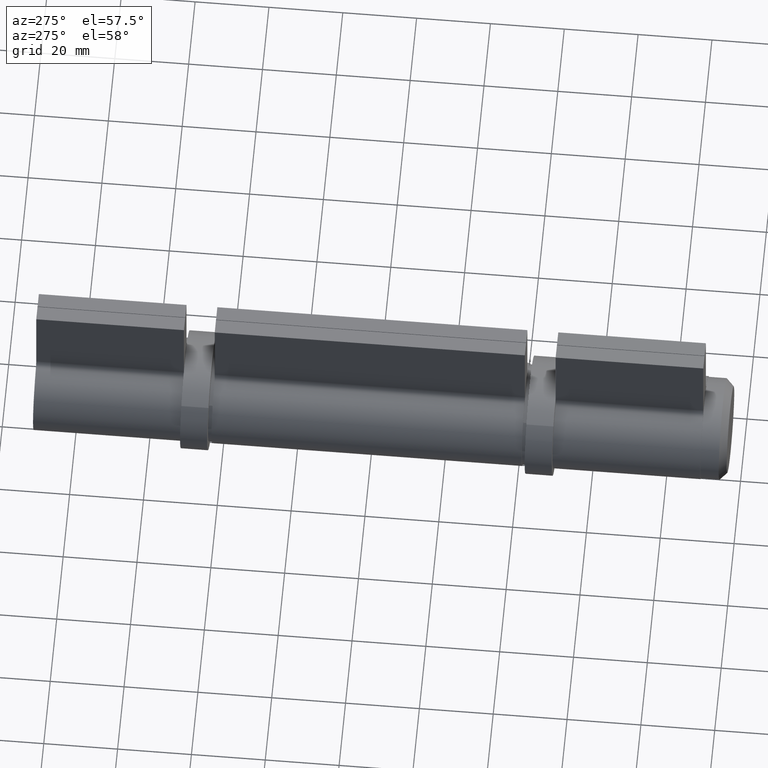
[diagram: clean part render]
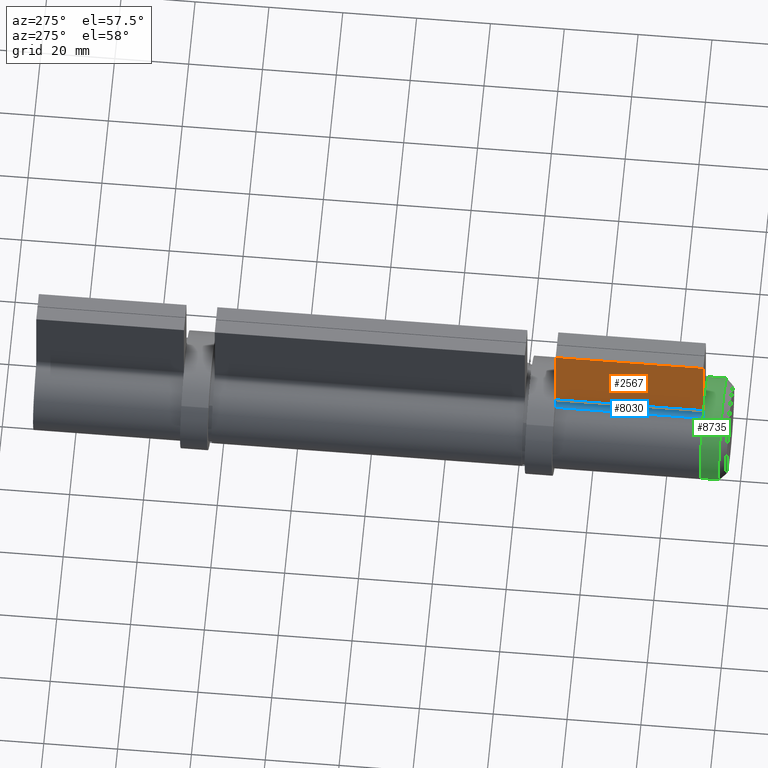
[diagram: same view with three faces highlighted in distinct colors, each labeled with its STEP entity id]
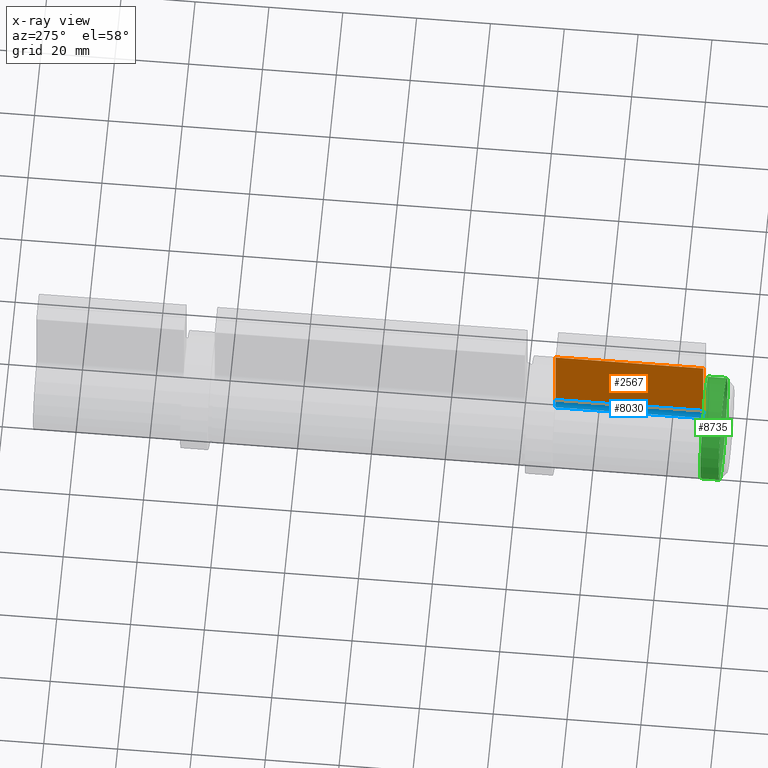
[diagram: x-ray of the same camera — body ghosted, the three highlighted faces saturated]
A machine part, auxiliary view with three faces highlighted in distinct colors.
The next image is the same camera in x-ray (body ghosted, the three faces saturated) — at least one of them is partly hidden behind the body in this view.
Their STEP definitions:

[orange] entity #2567 — the highlighted planar face has unit normal (1, 0, -0).
#483 = LINE ( 'NONE', #2439, #8384 ) ;
#1059 = VECTOR ( 'NONE', #9606, 1000.000000000000000 ) ;
#1103 = CARTESIAN_POINT ( 'NONE',  ( 4.049999999999999822, 20.00000000000000000, -14.81207277864917948 ) ) ;
#1180 = DIRECTION ( 'NONE',  ( -1.000000000000000000, 0.000000000000000000, 0.000000000000000000 ) ) ;
#1815 = FACE_OUTER_BOUND ( 'NONE', #2613, .T. ) ;
#2164 = LINE ( 'NONE', #9009, #7370 ) ;
#2362 = DIRECTION ( 'NONE',  ( -0.000000000000000000, -1.000000000000000000, -0.000000000000000000 ) ) ;
#2439 = CARTESIAN_POINT ( 'NONE',  ( 4.049999999999999822, 20.00000000000000000, -36.00000000000000000 ) ) ;
#2567 = ADVANCED_FACE ( 'NONE', ( #1815 ), #4335, .F. ) ;
#2613 = EDGE_LOOP ( 'NONE', ( #4138, #6239, #10129, #8463 ) ) ;
#2637 = DIRECTION ( 'NONE',  ( -0.000000000000000000, -1.000000000000000000, -0.000000000000000000 ) ) ;
#3009 = VERTEX_POINT ( 'NONE', #3801 ) ;
#3132 = VERTEX_POINT ( 'NONE', #6963 ) ;
#3159 = CARTESIAN_POINT ( 'NONE',  ( 4.049999999999999822, -20.00000000000000000, -36.00000000000000000 ) ) ;
#3492 = VERTEX_POINT ( 'NONE', #3159 ) ;
#3554 = CARTESIAN_POINT ( 'NONE',  ( 4.049999999999999822, 20.00000000000000000, 0.000000000000000000 ) ) ;
#3732 = DIRECTION ( 'NONE',  ( 0.000000000000000000, 0.000000000000000000, -1.000000000000000000 ) ) ;
#3801 = CARTESIAN_POINT ( 'NONE',  ( 4.049999999999999822, 20.00000000000000000, -14.81207277864917948 ) ) ;
#3804 = VECTOR ( 'NONE', #2637, 1000.000000000000000 ) ;
#4121 = EDGE_CURVE ( 'NONE', #3009, #3132, #2164, .T. ) ;
#4138 = ORIENTED_EDGE ( 'NONE', *, *, #4777, .T. ) ;
#4335 = PLANE ( 'NONE',  #7378 ) ;
#4540 = CARTESIAN_POINT ( 'NONE',  ( 4.049999999999999822, -20.00000000000000000, -14.81207277864917948 ) ) ;
#4777 = EDGE_CURVE ( 'NONE', #7238, #3492, #8109, .T. ) ;
#6036 = LINE ( 'NONE', #1103, #3804 ) ;
#6239 = ORIENTED_EDGE ( 'NONE', *, *, #8902, .F. ) ;
#6963 = CARTESIAN_POINT ( 'NONE',  ( 4.049999999999999822, 20.00000000000000000, -36.00000000000000000 ) ) ;
#7238 = VERTEX_POINT ( 'NONE', #4540 ) ;
#7370 = VECTOR ( 'NONE', #3732, 1000.000000000000000 ) ;
#7378 = AXIS2_PLACEMENT_3D ( 'NONE', #3554, #1180, #9868 ) ;
#8109 = LINE ( 'NONE', #8756, #1059 ) ;
#8384 = VECTOR ( 'NONE', #2362, 1000.000000000000000 ) ;
#8463 = ORIENTED_EDGE ( 'NONE', *, *, #9098, .T. ) ;
#8756 = CARTESIAN_POINT ( 'NONE',  ( 4.049999999999999822, -20.00000000000000000, 0.000000000000000000 ) ) ;
#8902 = EDGE_CURVE ( 'NONE', #3132, #3492, #483, .T. ) ;
#9009 = CARTESIAN_POINT ( 'NONE',  ( 4.049999999999999822, 20.00000000000000000, 0.000000000000000000 ) ) ;
#9098 = EDGE_CURVE ( 'NONE', #3009, #7238, #6036, .T. ) ;
#9606 = DIRECTION ( 'NONE',  ( 0.000000000000000000, 0.000000000000000000, -1.000000000000000000 ) ) ;
#9868 = DIRECTION ( 'NONE',  ( 0.000000000000000000, 0.000000000000000000, 1.000000000000000000 ) ) ;
#10129 = ORIENTED_EDGE ( 'NONE', *, *, #4121, .F. ) ;

[blue] entity #8030 — the highlighted cylindrical surface (edge-blend (fillet) strip) has radius 2 mm, axis along (0, -1, 0).
#285 = DIRECTION ( 'NONE',  ( 0.000000000000000000, 0.000000000000000000, -1.000000000000000000 ) ) ;
#335 = ORIENTED_EDGE ( 'NONE', *, *, #510, .T. ) ;
#382 = CARTESIAN_POINT ( 'NONE',  ( 6.049999999999999822, 20.00000000000000000, -14.81207277864917948 ) ) ;
#510 = EDGE_CURVE ( 'NONE', #939, #7300, #7790, .T. ) ;
#939 = VERTEX_POINT ( 'NONE', #4321 ) ;
#1103 = CARTESIAN_POINT ( 'NONE',  ( 4.049999999999999822, 20.00000000000000000, -14.81207277864917948 ) ) ;
#1571 = CIRCLE ( 'NONE', #5236, 2.000000000000000000 ) ;
#2518 = EDGE_CURVE ( 'NONE', #939, #3009, #1571, .T. ) ;
#2637 = DIRECTION ( 'NONE',  ( -0.000000000000000000, -1.000000000000000000, -0.000000000000000000 ) ) ;
#2743 = AXIS2_PLACEMENT_3D ( 'NONE', #3399, #8949, #4223 ) ;
#2881 = CARTESIAN_POINT ( 'NONE',  ( 5.293749999999986855, -20.00000000000000000, -12.96056368131803715 ) ) ;
#3009 = VERTEX_POINT ( 'NONE', #3801 ) ;
#3399 = CARTESIAN_POINT ( 'NONE',  ( 6.049999999999999822, -20.00000000000000000, -14.81207277864917948 ) ) ;
#3454 = DIRECTION ( 'NONE',  ( -0.000000000000000000, -1.000000000000000000, -0.000000000000000000 ) ) ;
#3582 = CIRCLE ( 'NONE', #2743, 2.000000000000000000 ) ;
#3663 = DIRECTION ( 'NONE',  ( -0.000000000000000000, -1.000000000000000000, -0.000000000000000000 ) ) ;
#3771 = ORIENTED_EDGE ( 'NONE', *, *, #2518, .F. ) ;
#3801 = CARTESIAN_POINT ( 'NONE',  ( 4.049999999999999822, 20.00000000000000000, -14.81207277864917948 ) ) ;
#3804 = VECTOR ( 'NONE', #2637, 1000.000000000000000 ) ;
#4223 = DIRECTION ( 'NONE',  ( 0.000000000000000000, 0.000000000000000000, 1.000000000000000000 ) ) ;
#4321 = CARTESIAN_POINT ( 'NONE',  ( 5.293749999999986855, 20.00000000000000000, -12.96056368131803715 ) ) ;
#4370 = DIRECTION ( 'NONE',  ( -0.000000000000000000, -1.000000000000000000, 0.000000000000000000 ) ) ;
#4540 = CARTESIAN_POINT ( 'NONE',  ( 4.049999999999999822, -20.00000000000000000, -14.81207277864917948 ) ) ;
#5236 = AXIS2_PLACEMENT_3D ( 'NONE', #382, #4370, #8222 ) ;
#5658 = CYLINDRICAL_SURFACE ( 'NONE', #7860, 1.999999999999998224 ) ;
#5865 = CARTESIAN_POINT ( 'NONE',  ( 6.049999999999999822, 20.00000000000000000, -14.81207277864917948 ) ) ;
#5942 = ORIENTED_EDGE ( 'NONE', *, *, #9098, .F. ) ;
#6036 = LINE ( 'NONE', #1103, #3804 ) ;
#7238 = VERTEX_POINT ( 'NONE', #4540 ) ;
#7300 = VERTEX_POINT ( 'NONE', #2881 ) ;
#7526 = EDGE_CURVE ( 'NONE', #7300, #7238, #3582, .T. ) ;
#7708 = CARTESIAN_POINT ( 'NONE',  ( 5.293749999999986855, 20.00000000000000000, -12.96056368131803715 ) ) ;
#7780 = FACE_OUTER_BOUND ( 'NONE', #9524, .T. ) ;
#7790 = LINE ( 'NONE', #7708, #9364 ) ;
#7860 = AXIS2_PLACEMENT_3D ( 'NONE', #5865, #3454, #285 ) ;
#8030 = ADVANCED_FACE ( 'NONE', ( #7780 ), #5658, .F. ) ;
#8222 = DIRECTION ( 'NONE',  ( 0.000000000000000000, 0.000000000000000000, 1.000000000000000000 ) ) ;
#8949 = DIRECTION ( 'NONE',  ( -0.000000000000000000, -1.000000000000000000, 0.000000000000000000 ) ) ;
#9098 = EDGE_CURVE ( 'NONE', #3009, #7238, #6036, .T. ) ;
#9364 = VECTOR ( 'NONE', #3663, 1000.000000000000000 ) ;
#9524 = EDGE_LOOP ( 'NONE', ( #9909, #5942, #3771, #335 ) ) ;
#9909 = ORIENTED_EDGE ( 'NONE', *, *, #7526, .T. ) ;

[green] entity #8735 — the highlighted cylindrical surface (bore or boss wall) has radius 13.75 mm, axis along (-0, -1, -0).
#909 = AXIS2_PLACEMENT_3D ( 'NONE', #5140, #1187, #2694 ) ;
#1115 = AXIS2_PLACEMENT_3D ( 'NONE', #1276, #8348, #2230 ) ;
#1187 = DIRECTION ( 'NONE',  ( 0.000000000000000000, 1.000000000000000000, 0.000000000000000000 ) ) ;
#1276 = CARTESIAN_POINT ( 'NONE',  ( 0.000000000000000000, 0.000000000000000000, 0.000000000000000000 ) ) ;
#1745 = DIRECTION ( 'NONE',  ( -0.000000000000000000, -1.000000000000000000, -0.000000000000000000 ) ) ;
#2059 = EDGE_LOOP ( 'NONE', ( #6324 ) ) ;
#2230 = DIRECTION ( 'NONE',  ( 0.000000000000000000, 0.000000000000000000, -1.000000000000000000 ) ) ;
#2694 = DIRECTION ( 'NONE',  ( 0.000000000000000000, 0.000000000000000000, -1.000000000000000000 ) ) ;
#2864 = CARTESIAN_POINT ( 'NONE',  ( 0.000000000000000000, 7.000000000000006217, -13.75000000000000000 ) ) ;
#3331 = DIRECTION ( 'NONE',  ( 0.000000000000000000, 0.000000000000000000, -1.000000000000000000 ) ) ;
#4803 = EDGE_CURVE ( 'NONE', #5277, #5277, #9070, .T. ) ;
#4893 = EDGE_LOOP ( 'NONE', ( #8480 ) ) ;
#5140 = CARTESIAN_POINT ( 'NONE',  ( 0.000000000000000000, 1.999999999999980016, 0.000000000000000000 ) ) ;
#5277 = VERTEX_POINT ( 'NONE', #2864 ) ;
#5507 = EDGE_CURVE ( 'NONE', #9105, #9105, #7983, .T. ) ;
#5772 = CYLINDRICAL_SURFACE ( 'NONE', #1115, 13.75000000000000000 ) ;
#6324 = ORIENTED_EDGE ( 'NONE', *, *, #5507, .T. ) ;
#6491 = CARTESIAN_POINT ( 'NONE',  ( 0.000000000000000000, 7.000000000000006217, 0.000000000000000000 ) ) ;
#6533 = FACE_OUTER_BOUND ( 'NONE', #2059, .T. ) ;
#7983 = CIRCLE ( 'NONE', #909, 13.75000000000000000 ) ;
#7990 = AXIS2_PLACEMENT_3D ( 'NONE', #6491, #1745, #3331 ) ;
#8348 = DIRECTION ( 'NONE',  ( -0.000000000000000000, -1.000000000000000000, -0.000000000000000000 ) ) ;
#8408 = CARTESIAN_POINT ( 'NONE',  ( 0.000000000000000000, 1.999999999999980016, -13.75000000000000000 ) ) ;
#8480 = ORIENTED_EDGE ( 'NONE', *, *, #4803, .T. ) ;
#8735 = ADVANCED_FACE ( 'NONE', ( #6533, #8859 ), #5772, .T. ) ;
#8859 = FACE_OUTER_BOUND ( 'NONE', #4893, .T. ) ;
#9070 = CIRCLE ( 'NONE', #7990, 13.75000000000000000 ) ;
#9105 = VERTEX_POINT ( 'NONE', #8408 ) ;